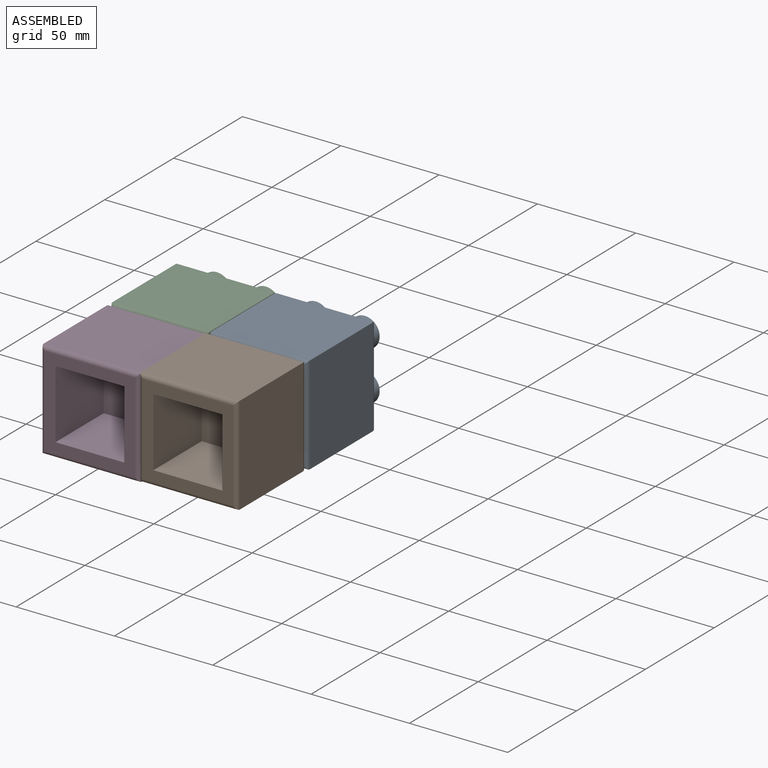
[diagram: assembled view]
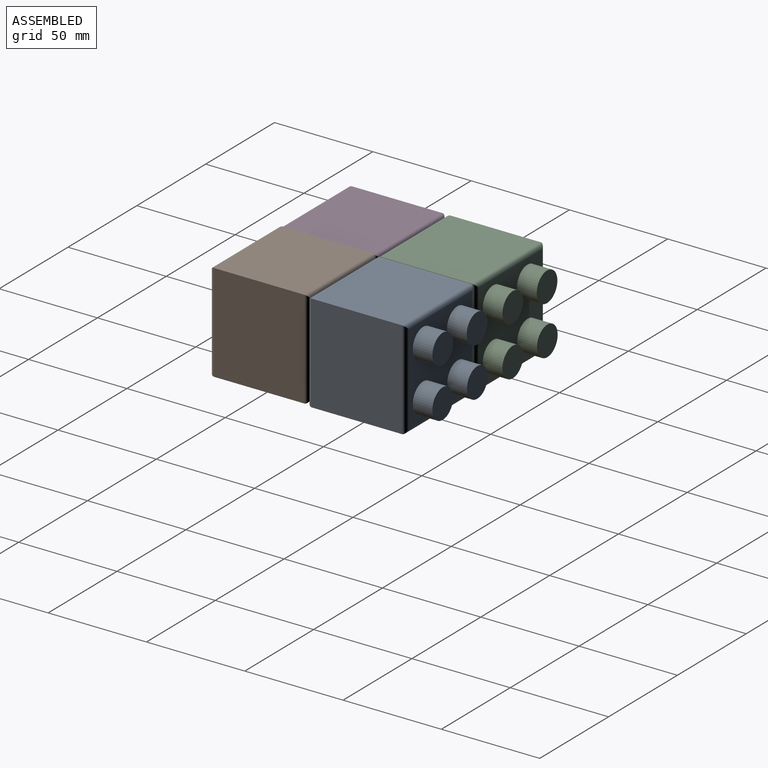
[diagram: assembled view, second angle]
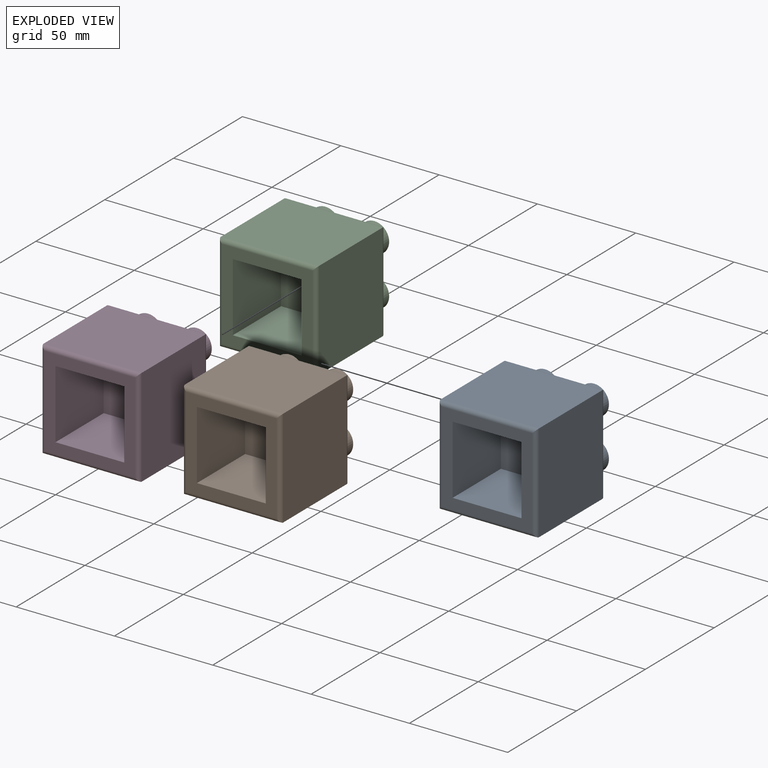
[diagram: exploded view]
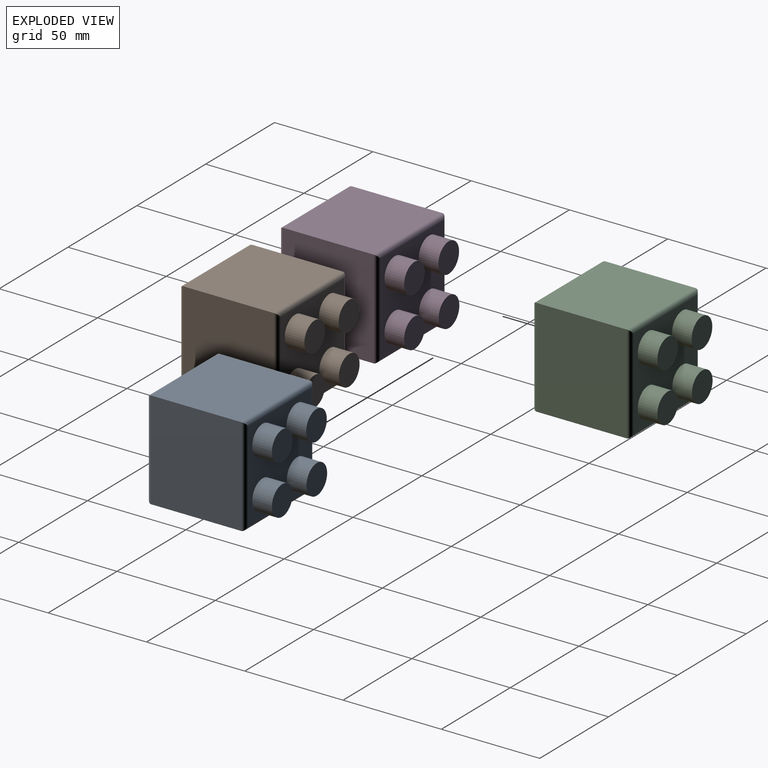
[diagram: exploded view, second angle]
ASSEMBLY  parts=4 mates=2
PART A: 27 faces, bbox 50x60x50 mm
  f0: plane 46x46mm, normal (0,-1,0), area 891mm2, adj f6,f7,f8,f9,f23,f24,f25,f26
  f1: plane 50x46mm, normal (0,0,-1), area 2300mm2, adj f2,f4,f19,f23
  f2: plane 50x46mm, normal (1,0,0), area 2300mm2, adj f1,f3,f20,f24
  f3: plane 50x46mm, normal (0,0,1), area 2300mm2, adj f2,f4,f22,f26
  f4: plane 50x46mm, normal (-1,0,0), area 2300mm2, adj f1,f3,f21,f25
  f5: plane 46x46mm, normal (0,1,0), area 1409.1mm2, adj f11,f13,f15,f17,f19,f20,f21,f22
  f6: plane 35x35mm, normal (0,0,1), area 1225mm2, adj f0,f7,f9,f10
  f7: plane 35x35mm, normal (-1,0,0), area 1225mm2, adj f0,f6,f8,f10
  f8: plane 35x35mm, normal (0,0,-1), area 1225mm2, adj f0,f7,f9,f10
  f9: plane 35x35mm, normal (1,0,0), area 1225mm2, adj f0,f6,f8,f10
  f10: plane 35x35mm, normal (0,-1,0), area 1225mm2, adj f6,f7,f8,f9
  f11: cylinder r=7.5mm len=15mm, axis (0,-1,0), area 471.2mm2, adj f5,f12
  f12: plane 15x15mm, normal (0,1,0), area 176.7mm2, adj f11
  f13: cylinder r=7.5mm len=15mm, axis (0,-1,0), area 471.2mm2, adj f5,f14
  f14: plane 15x15mm, normal (0,1,0), area 176.7mm2, adj f13
  f15: cylinder r=7.5mm len=15mm, axis (0,-1,0), area 471.2mm2, adj f5,f16
  f16: plane 15x15mm, normal (0,1,0), area 176.7mm2, adj f15
  f17: cylinder r=7.5mm len=15mm, axis (0,-1,0), area 471.2mm2, adj f5,f18
  f18: plane 15x15mm, normal (0,1,0), area 176.7mm2, adj f17
  f19: cylinder r=2mm len=50mm, axis (1,0,0), area 152.5mm2, adj f1,f5,f20,f21
  f20: cylinder r=2mm len=50mm, axis (0,0,1), area 152.5mm2, adj f2,f5,f19,f22
  f21: cylinder r=2mm len=50mm, axis (0,0,-1), area 152.5mm2, adj f4,f5,f19,f22
  f22: cylinder r=2mm len=50mm, axis (-1,0,0), area 152.5mm2, adj f3,f5,f20,f21
  f23: cylinder r=2mm len=50mm, axis (-1,0,0), area 152.5mm2, adj f0,f1,f24,f25
  f24: cylinder r=2mm len=50mm, axis (0,0,-1), area 152.5mm2, adj f0,f2,f23,f26
  f25: cylinder r=2mm len=50mm, axis (0,0,1), area 152.5mm2, adj f0,f4,f23,f26
  f26: cylinder r=2mm len=50mm, axis (1,0,0), area 152.5mm2, adj f0,f3,f24,f25
PART B: same geometry as A
PART C: same geometry as A
PART D: same geometry as A
PLACE A t=(50.52,-0.23,0.14)mm
PLACE B t=(49.99,-50.26,0.62)mm
PLACE C at identity fixed
PLACE D t=(-0.01,-50,0.03)mm
MATE parallel D.f2 <-> D.f2  axis (1,0,0) through (24.99,-50,0.03)mm
MATE fastened D.f5 <-> C.f0  axis (0,1,0) through (0,-25,0)mm
